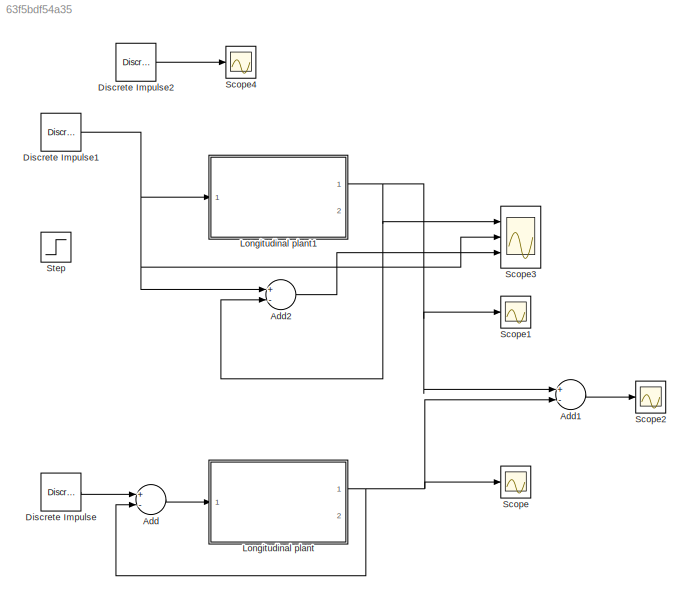
MODEL slx_63f5bdf54a35
KIND model
CONFIG AbsTol = auto
CONFIG EnableMultiTasking = off
CONFIG FixedStep = auto
CONFIG MaxStep = auto
CONFIG MinStep = auto
CONFIG RelTol = 1e-3
CONFIG SampleTimeConstraint = Unconstrained
CONFIG Solver = VariableStepAuto
CONFIG SolverName = VariableStepAuto
CONFIG StartTime = 0.0
CONFIG StopTime = 20
BLOCK [Sum] Add
  InputSameDT = off
  Inputs = +-
  OutDataTypeStr = Inherit: Inherit via internal rule
  Ports = [2, 1]
  SaturateOnIntegerOverflow = off
BLOCK [Sum] Add1
  InputSameDT = off
  Inputs = +-
  OutDataTypeStr = Inherit: Inherit via internal rule
  Ports = [2, 1]
  SaturateOnIntegerOverflow = off
BLOCK [Sum] Add2
  InputSameDT = off
  Inputs = +-
  OutDataTypeStr = Inherit: Inherit via internal rule
  Ports = [2, 1]
  SaturateOnIntegerOverflow = off
BLOCK [Reference] Discrete Impulse  REF=dspsrcs4/Discrete 
Impulse
  Ports = [0, 1]
  SourceBlock = dspsrcs4/Discrete \nImpulse
  SourceType = Discrete Impulse
BLOCK [Reference] Discrete Impulse1  REF=dspsrcs4/Discrete 
Impulse
  Ports = [0, 1]
  SourceBlock = dspsrcs4/Discrete \nImpulse
  SourceType = Discrete Impulse
BLOCK [Reference] Discrete Impulse2  REF=dspsrcs4/Discrete 
Impulse
  Ports = [0, 1]
  SourceBlock = dspsrcs4/Discrete \nImpulse
  SourceType = Discrete Impulse
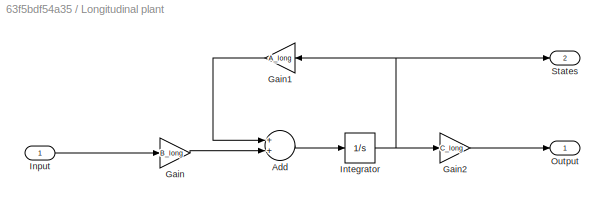
BLOCK [SubSystem] Longitudinal plant
  Ports = [1, 2]
  RequestExecContextInheritance = off
  Variant = off
BLOCK [Sum] Longitudinal plant/Add
  InputSameDT = off
  OutDataTypeStr = Inherit: Inherit via internal rule
  Ports = [2, 1]
  SaturateOnIntegerOverflow = off
BLOCK [Gain] Longitudinal plant/Gain
  Gain = B_long
  Multiplication = Matrix(K*u)
  OutDataTypeStr = Inherit: Inherit via internal rule
  ParamDataTypeStr = Inherit: Inherit via internal rule
  SaturateOnIntegerOverflow = off
BLOCK [Gain] Longitudinal plant/Gain1
  Gain = A_long
  Multiplication = Matrix(K*u)
  OutDataTypeStr = Inherit: Inherit via internal rule
  ParamDataTypeStr = Inherit: Inherit via internal rule
  SaturateOnIntegerOverflow = off
BLOCK [Gain] Longitudinal plant/Gain2
  Gain = C_long
  Multiplication = Matrix(K*u)
  OutDataTypeStr = Inherit: Inherit via internal rule
  ParamDataTypeStr = Inherit: Inherit via internal rule
  SaturateOnIntegerOverflow = off
BLOCK [Inport] Longitudinal plant/Input
  IconDisplay = Port number
BLOCK [Integrator] Longitudinal plant/Integrator
  Ports = [1, 1]
BLOCK [Outport] Longitudinal plant/Output
  IconDisplay = Port number
BLOCK [Outport] Longitudinal plant/States
  IconDisplay = Port number
  Port = 2
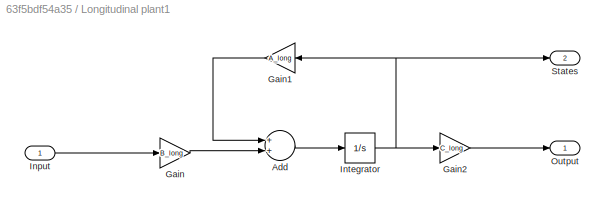
BLOCK [SubSystem] Longitudinal plant1
  Ports = [1, 2]
  RequestExecContextInheritance = off
  Variant = off
BLOCK [Sum] Longitudinal plant1/Add
  InputSameDT = off
  OutDataTypeStr = Inherit: Inherit via internal rule
  Ports = [2, 1]
  SaturateOnIntegerOverflow = off
BLOCK [Gain] Longitudinal plant1/Gain
  Gain = B_long
  Multiplication = Matrix(K*u)
  OutDataTypeStr = Inherit: Inherit via internal rule
  ParamDataTypeStr = Inherit: Inherit via internal rule
  SaturateOnIntegerOverflow = off
BLOCK [Gain] Longitudinal plant1/Gain1
  Gain = A_long
  Multiplication = Matrix(K*u)
  OutDataTypeStr = Inherit: Inherit via internal rule
  ParamDataTypeStr = Inherit: Inherit via internal rule
  SaturateOnIntegerOverflow = off
BLOCK [Gain] Longitudinal plant1/Gain2
  Gain = C_long
  Multiplication = Matrix(K*u)
  OutDataTypeStr = Inherit: Inherit via internal rule
  ParamDataTypeStr = Inherit: Inherit via internal rule
  SaturateOnIntegerOverflow = off
BLOCK [Inport] Longitudinal plant1/Input
  IconDisplay = Port number
BLOCK [Integrator] Longitudinal plant1/Integrator
  Ports = [1, 1]
BLOCK [Outport] Longitudinal plant1/Output
  IconDisplay = Port number
BLOCK [Outport] Longitudinal plant1/States
  IconDisplay = Port number
  Port = 2
BLOCK [Scope] Scope
  NumInputPorts = 1
  Ports = [1]
  ScopeSpecificationString = Simulink.scopes.TimeScopeBlockCfg('CurrentConfiguration', extmgr.ConfigurationSet(extmgr.Configuration('Core','General UI',true),extmgr.Configuration('Core','Source UI',true),extmgr.Configuration('Sources','WiredSimulink',true),extmgr.Configuration('Visuals','Time Domain',true,'SerializedDisplays',{struct('MinYLimReal','-0.0032','MaxYLimReal','0.02879','YLabelReal','','MinYLimMag','0.00000','MaxYL...<+1338ch>
BLOCK [Scope] Scope1
  NumInputPorts = 1
  Ports = [1]
  ScopeSpecificationString = Simulink.scopes.TimeScopeBlockCfg('CurrentConfiguration', extmgr.ConfigurationSet(extmgr.Configuration('Core','General UI',true),extmgr.Configuration('Core','Source UI',true),extmgr.Configuration('Sources','WiredSimulink',true,'DataLoggingVariableName','ScopeData1'),extmgr.Configuration('Visuals','Time Domain',true,'SerializedDisplays',{struct('MinYLimReal','-0.00326','MaxYLimReal','0.02937','YLab...<+1380ch>
BLOCK [Scope] Scope2
  NumInputPorts = 1
  Ports = [1]
  ScopeSpecificationString = Simulink.scopes.TimeScopeBlockCfg('CurrentConfiguration', extmgr.ConfigurationSet(extmgr.Configuration('Core','General UI',true),extmgr.Configuration('Core','Source UI',true),extmgr.Configuration('Sources','WiredSimulink',true,'DataLoggingVariableName','ScopeData2'),extmgr.Configuration('Visuals','Time Domain',true,'SerializedDisplays',{struct('MinYLimReal','-0.01349','MaxYLimReal','0.00881','YLab...<+1363ch>
BLOCK [Scope] Scope3
  NumInputPorts = 3
  Ports = [3]
  ScopeSpecificationString = Simulink.scopes.TimeScopeBlockCfg('CurrentConfiguration', extmgr.ConfigurationSet(extmgr.Configuration('Core','General UI',true),extmgr.Configuration('Core','Source UI',true),extmgr.Configuration('Sources','WiredSimulink',true,'DataLoggingVariableName','ScopeData3'),extmgr.Configuration('Visuals','Time Domain',true,'SerializedDisplays',{struct('MinYLimReal','-0.15437','MaxYLimReal','1.12826','YLab...<+1439ch>
BLOCK [Scope] Scope4
  NumInputPorts = 1
  Ports = [1]
  ScopeSpecificationString = Simulink.scopes.TimeScopeBlockCfg('CurrentConfiguration', extmgr.ConfigurationSet(extmgr.Configuration('Core','General UI',true),extmgr.Configuration('Core','Source UI',true),extmgr.Configuration('Sources','WiredSimulink',true,'DataLoggingVariableName','ScopeData4'),extmgr.Configuration('Visuals','Time Domain',true,'SerializedDisplays',{struct('MinYLimReal','-0.125','MaxYLimReal','1.125','YLabelRe...<+1396ch>
BLOCK [Step] Step
  SampleTime = 0
LINE Add1:1 -> Scope2:1
LINE Add2:1 -> Scope3:3
LINE Add:1 -> Longitudinal plant:1
NET Discrete Impulse1:1 -> Add2:1, Longitudinal plant1:1, Scope3:2
LINE Discrete Impulse2:1 -> Scope4:1
LINE Discrete Impulse:1 -> Add:1
LINE Longitudinal plant/Add:1 -> Longitudinal plant/Integrator:1
LINE Longitudinal plant/Gain1:1 -> Longitudinal plant/Add:1
LINE Longitudinal plant/Gain2:1 -> Longitudinal plant/Output:1
LINE Longitudinal plant/Gain:1 -> Longitudinal plant/Add:2
LINE Longitudinal plant/Input:1 -> Longitudinal plant/Gain:1
NET Longitudinal plant/Integrator:1 -> Longitudinal plant/Gain1:1, Longitudinal plant/Gain2:1, Longitudinal plant/States:1
LINE Longitudinal plant1/Add:1 -> Longitudinal plant1/Integrator:1
LINE Longitudinal plant1/Gain1:1 -> Longitudinal plant1/Add:1
LINE Longitudinal plant1/Gain2:1 -> Longitudinal plant1/Output:1
LINE Longitudinal plant1/Gain:1 -> Longitudinal plant1/Add:2
LINE Longitudinal plant1/Input:1 -> Longitudinal plant1/Gain:1
NET Longitudinal plant1/Integrator:1 -> Longitudinal plant1/Gain1:1, Longitudinal plant1/Gain2:1, Longitudinal plant1/States:1
NET Longitudinal plant1:1 -> Add1:1, Add2:2, Scope1:1, Scope3:1
NET Longitudinal plant:1 -> Add1:2, Add:2, Scope:1
note: NET lines group one-source signal fan-out (src -> all destinations, sorted); 1:1 wires keep LINE
